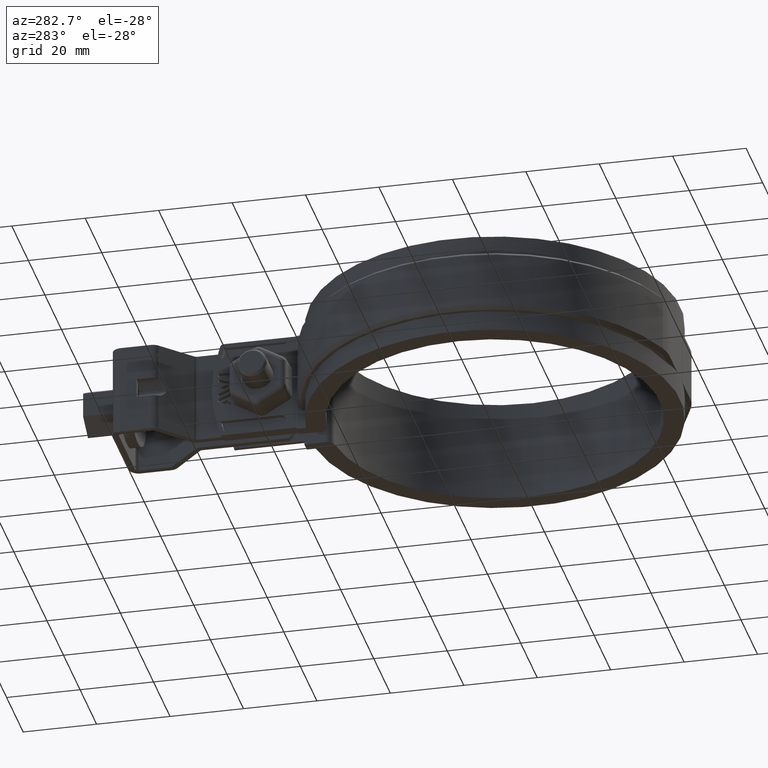
[diagram: clean part render]
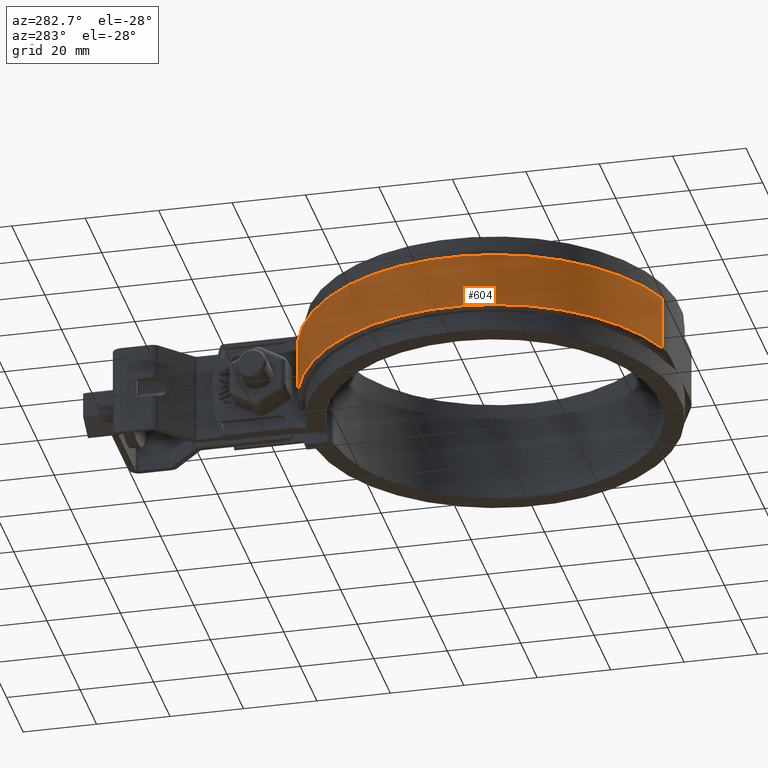
[diagram: same view with one face highlighted and labeled with its STEP entity id]
A machine part, auxiliary view. The second image highlights one B-rep face of the part: STEP entity #604.
In plain terms, the highlighted cylindrical surface (partial cylindrical patch) has radius 52.5 mm, axis along (0, 0, -1).
Its self-contained STEP definition (entity closure, byte-faithful):
#604 = ADVANCED_FACE( '', ( #1121 ), #1122, .T. );
#1121 = FACE_OUTER_BOUND( '', #2458, .T. );
#1122 = CYLINDRICAL_SURFACE( '', #2459, 52.5000000000000 );
#2458 = EDGE_LOOP( '', ( #5437, #5438, #5439, #5440 ) );
#2459 = AXIS2_PLACEMENT_3D( '', #5441, #5442, #5443 );
#5437 = ORIENTED_EDGE( '', *, *, #7760, .T. );
#5438 = ORIENTED_EDGE( '', *, *, #7735, .T. );
#5439 = ORIENTED_EDGE( '', *, *, #7669, .F. );
#5440 = ORIENTED_EDGE( '', *, *, #7678, .T. );
#5441 = CARTESIAN_POINT( '', ( 8.67361737988404E-016, -6.93889390390723E-015, -8.50000000000000 ) );
#5442 = DIRECTION( '', ( 0.000000000000000, 0.000000000000000, -1.00000000000000 ) );
#5443 = DIRECTION( '', ( -0.0952380952380952, 0.995454521922232, 0.000000000000000 ) );
#7669 = EDGE_CURVE( '', #8925, #8927, #8928, .T. );
#7678 = EDGE_CURVE( '', #8925, #8941, #8943, .T. );
#7735 = EDGE_CURVE( '', #9022, #8927, #9026, .F. );
#7760 = EDGE_CURVE( '', #8941, #9022, #9061, .T. );
#8925 = VERTEX_POINT( '', #12763 );
#8927 = VERTEX_POINT( '', #12768 );
#8928 = LINE( '', #12769, #12770 );
#8941 = VERTEX_POINT( '', #12791 );
#8943 = CIRCLE( '', #12794, 52.5000000000000 );
#9022 = VERTEX_POINT( '', #12918 );
#9026 = CIRCLE( '', #12923, 52.5000000000000 );
#9061 = LINE( '', #12973, #12974 );
#12763 = CARTESIAN_POINT( '', ( -6.00000000000000, 52.1560159521411, -7.50000000000000 ) );
#12768 = CARTESIAN_POINT( '', ( -6.00000000000000, 52.1560159521411, 7.50000000000000 ) );
#12769 = CARTESIAN_POINT( '', ( -6.00000000000000, 52.1560159521411, -8.50000000000000 ) );
#12770 = VECTOR( '', #14792, 1000.00000000000 );
#12791 = CARTESIAN_POINT( '', ( -17.1610764231152, -49.6160000000000, -7.50000000000000 ) );
#12794 = AXIS2_PLACEMENT_3D( '', #14802, #14803, #14804 );
#12918 = CARTESIAN_POINT( '', ( -17.1610764231152, -49.6160000000000, 7.50000000000000 ) );
#12923 = AXIS2_PLACEMENT_3D( '', #14887, #14888, #14889 );
#12973 = CARTESIAN_POINT( '', ( -17.1610764231152, -49.6160000000000, -8.50000000000000 ) );
#12974 = VECTOR( '', #14932, 1000.00000000000 );
#14792 = DIRECTION( '', ( 0.000000000000000, 0.000000000000000, 1.00000000000000 ) );
#14802 = CARTESIAN_POINT( '', ( 8.67361737988404E-016, -6.93889390390723E-015, -7.50000000000000 ) );
#14803 = DIRECTION( '', ( 0.000000000000000, 0.000000000000000, 1.00000000000000 ) );
#14804 = DIRECTION( '', ( 1.00000000000000, 0.000000000000000, 0.000000000000000 ) );
#14887 = CARTESIAN_POINT( '', ( 8.67361737988404E-016, -6.93889390390723E-015, 7.50000000000000 ) );
#14888 = DIRECTION( '', ( 0.000000000000000, 0.000000000000000, 1.00000000000000 ) );
#14889 = DIRECTION( '', ( 1.00000000000000, 0.000000000000000, 0.000000000000000 ) );
#14932 = DIRECTION( '', ( 0.000000000000000, 0.000000000000000, 1.00000000000000 ) );